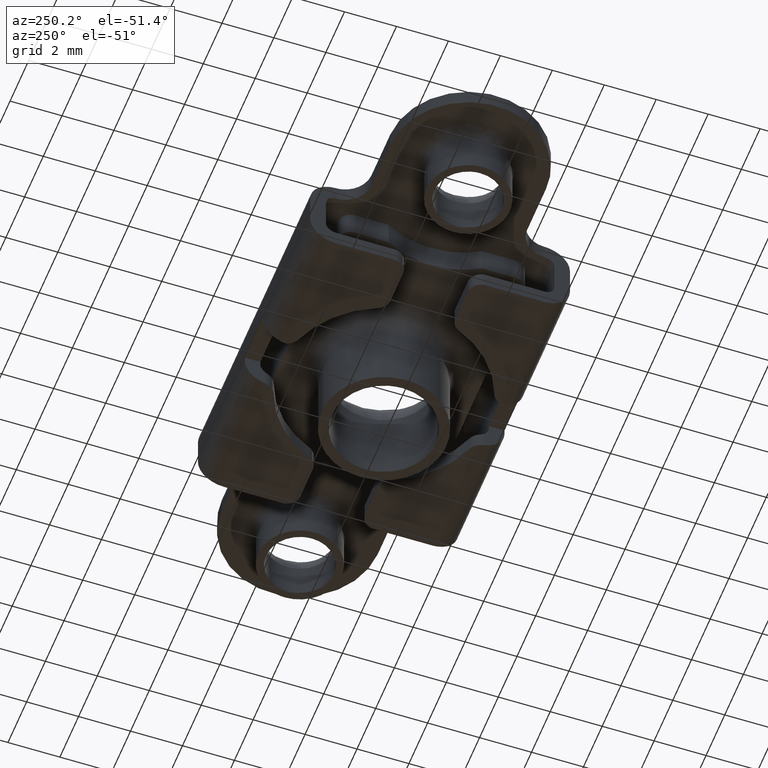
[diagram: clean part render]
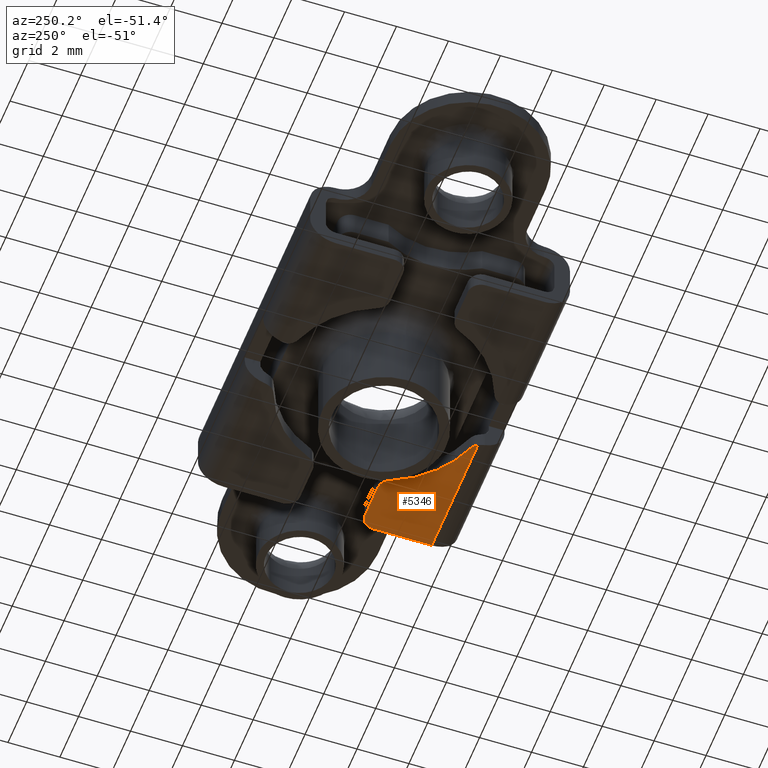
[diagram: same view with one face highlighted and labeled with its STEP entity id]
A machine part, auxiliary view. The second image highlights one B-rep face of the part: STEP entity #5346.
In plain terms, the highlighted face is a freeform B-spline surface patch.
Its self-contained STEP definition (entity closure, byte-faithful):
#3098=CARTESIAN_POINT('',(6.0,-3.999999999995395,-3.199999999984400));
#3099=VERTEX_POINT('',#3098);
#3113=CARTESIAN_POINT('',(6.0,-1.749999999997330,-3.199999999984400));
#3114=VERTEX_POINT('',#3113);
#3115=CARTESIAN_POINT('',(6.0,-3.999999999995395,-3.199999999984400));
#3116=CARTESIAN_POINT('',(6.0,-1.749999999997330,-3.199999999984400));
#3117=QUASI_UNIFORM_CURVE('',1,(#3115,#3116),.UNSPECIFIED.,.F.,.U.);
#3118=EDGE_CURVE('',#3099,#3114,#3117,.T.);
#4260=CARTESIAN_POINT('',(1.333333333333340,-3.771236166327740,-3.199999999984440));
#4261=VERTEX_POINT('',#4260);
#4267=CARTESIAN_POINT('',(1.062820978371222,-3.999999999995395,-3.199999999984440));
#4268=VERTEX_POINT('',#4267);
#4269=CARTESIAN_POINT('',(1.062820978371223,-3.999999999995396,-3.199999999984440));
#4270=CARTESIAN_POINT('',(1.154744154881413,-3.834376975892684,-3.199999999984440));
#4271=CARTESIAN_POINT('',(1.333333333333340,-3.771236166327741,-3.199999999984440));
#4279=(BOUNDED_CURVE()B_SPLINE_CURVE(2,(#4269,#4270,#4271),.UNSPECIFIED.,.F.,.U.)CURVE()GEOMETRIC_REPRESENTATION_ITEM()QUASI_UNIFORM_CURVE()RATIONAL_B_SPLINE_CURVE((1.0,0.935141793643363,1.0))REPRESENTATION_ITEM(''));
#4280=EDGE_CURVE('',#4268,#4261,#4279,.T.);
#4438=CARTESIAN_POINT('',(4.145780987625305,-1.249999999997328,-3.199999999984400));
#4439=VERTEX_POINT('',#4438);
#4445=CARTESIAN_POINT('',(3.685138655666945,-1.555555556226775,-3.199999999984440));
#4446=VERTEX_POINT('',#4445);
#4447=CARTESIAN_POINT('',(3.685138655666943,-1.555555556226774,-3.199999999984440));
#4448=CARTESIAN_POINT('',(3.814118508655386,-1.250000000755185,-3.199999999984441));
#4449=CARTESIAN_POINT('',(4.145780987625305,-1.250000000755185,-3.199999999984440));
#4457=(BOUNDED_CURVE()B_SPLINE_CURVE(2,(#4447,#4448,#4449),.UNSPECIFIED.,.F.,.U.)CURVE()GEOMETRIC_REPRESENTATION_ITEM()QUASI_UNIFORM_CURVE()RATIONAL_B_SPLINE_CURVE((1.0,0.833333333383713,1.0))REPRESENTATION_ITEM(''));
#4458=EDGE_CURVE('',#4446,#4439,#4457,.T.);
#4482=CARTESIAN_POINT('',(5.500000000000000,-1.249999999997328,-3.199999999984400));
#4483=VERTEX_POINT('',#4482);
#4484=CARTESIAN_POINT('',(5.500000000000000,-1.249999999997328,-3.199999999984400));
#4485=CARTESIAN_POINT('',(6.0,-1.249999999997330,-3.199999999984441));
#4486=CARTESIAN_POINT('',(6.0,-1.749999999997330,-3.199999999984440));
#4494=(BOUNDED_CURVE()B_SPLINE_CURVE(2,(#4484,#4485,#4486),.UNSPECIFIED.,.F.,.U.)CURVE()GEOMETRIC_REPRESENTATION_ITEM()QUASI_UNIFORM_CURVE()RATIONAL_B_SPLINE_CURVE((1.0,0.707106781186548,1.0))REPRESENTATION_ITEM(''));
#4495=EDGE_CURVE('',#4483,#3114,#4494,.T.);
#4894=CARTESIAN_POINT('',(3.685138655666944,-1.555555556226775,-3.199999999984440));
#4895=CARTESIAN_POINT('',(2.998353058094179,-3.182562797233890,-3.199999999984441));
#4896=CARTESIAN_POINT('',(1.333333333333340,-3.771236166327738,-3.199999999984440));
#4904=(BOUNDED_CURVE()B_SPLINE_CURVE(2,(#4894,#4895,#4896),.UNSPECIFIED.,.F.,.U.)CURVE()GEOMETRIC_REPRESENTATION_ITEM()QUASI_UNIFORM_CURVE()RATIONAL_B_SPLINE_CURVE((1.0,0.914806768871386,1.0))REPRESENTATION_ITEM(''));
#4905=EDGE_CURVE('',#4446,#4261,#4904,.T.);
#5319=CARTESIAN_POINT('',(4.145780987625305,-1.249999999997328,-3.199999999984400));
#5320=CARTESIAN_POINT('',(5.500000000000000,-1.249999999997328,-3.199999999984400));
#5321=QUASI_UNIFORM_CURVE('',1,(#5319,#5320),.UNSPECIFIED.,.F.,.U.);
#5322=EDGE_CURVE('',#4439,#4483,#5321,.T.);
#5328=CARTESIAN_POINT('',(6.246612082561146,-4.137362494665266,-3.199999999984400));
#5329=CARTESIAN_POINT('',(0.816208763384615,-4.137362494665266,-3.199999999984400));
#5330=CARTESIAN_POINT('',(6.246612082561146,-1.112637431566710,-3.199999999984400));
#5331=CARTESIAN_POINT('',(0.816208763384615,-1.112637431566710,-3.199999999984400));
#5332=B_SPLINE_SURFACE_WITH_KNOTS('',1,1,((#5328,#5330),(#5329,#5331)),.UNSPECIFIED.,.F.,.F.,.U.,(2,2),(2,2),(0.0,5.430403319176531),(0.0,3.024725063098555),.UNSPECIFIED.);
#5333=ORIENTED_EDGE('',*,*,#5322,.T.);
#5334=ORIENTED_EDGE('',*,*,#4495,.T.);
#5335=ORIENTED_EDGE('',*,*,#3118,.F.);
#5336=CARTESIAN_POINT('',(1.062820978371222,-3.999999999995395,-3.199999999984440));
#5337=CARTESIAN_POINT('',(6.0,-3.999999999995395,-3.199999999984400));
#5338=QUASI_UNIFORM_CURVE('',1,(#5336,#5337),.UNSPECIFIED.,.F.,.U.);
#5339=EDGE_CURVE('',#4268,#3099,#5338,.T.);
#5340=ORIENTED_EDGE('',*,*,#5339,.F.);
#5341=ORIENTED_EDGE('',*,*,#4280,.T.);
#5342=ORIENTED_EDGE('',*,*,#4905,.F.);
#5343=ORIENTED_EDGE('',*,*,#4458,.T.);
#5344=EDGE_LOOP('',(#5333,#5334,#5335,#5340,#5341,#5342,#5343));
#5345=FACE_OUTER_BOUND('',#5344,.T.);
#5346=ADVANCED_FACE('',(#5345),#5332,.T.);